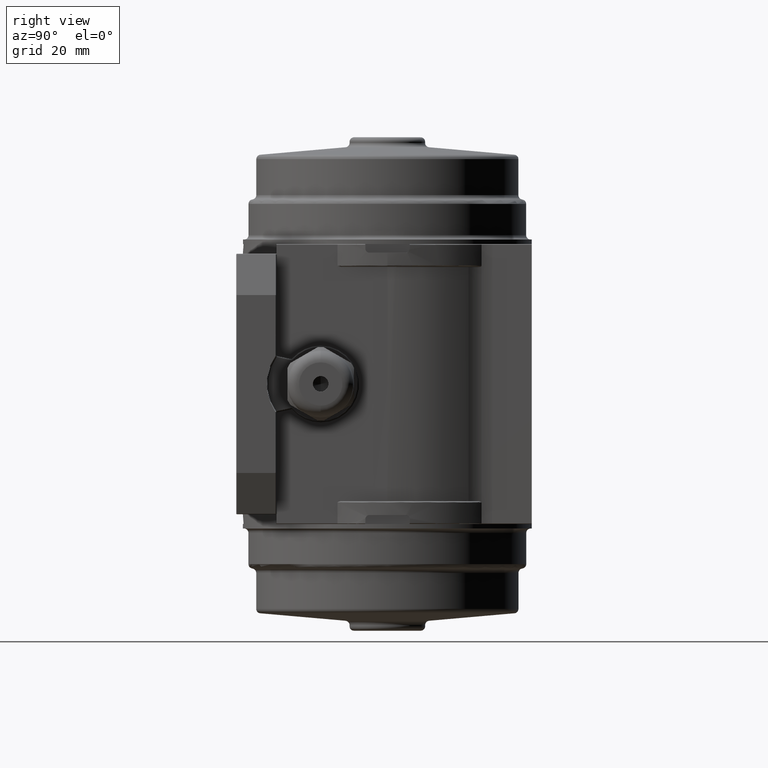
[diagram: clean part render]
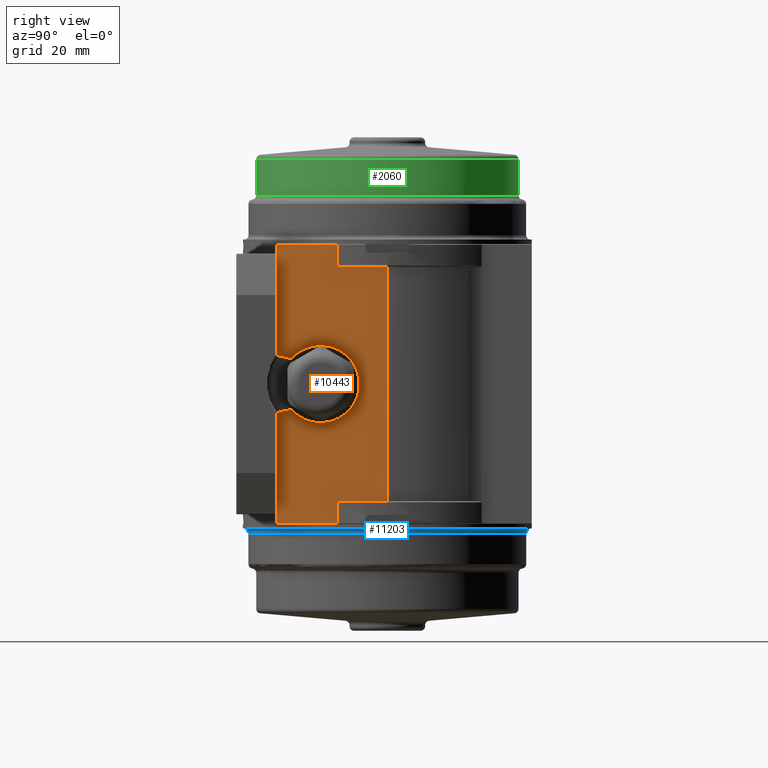
[diagram: same view with three faces highlighted in distinct colors, each labeled with its STEP entity id]
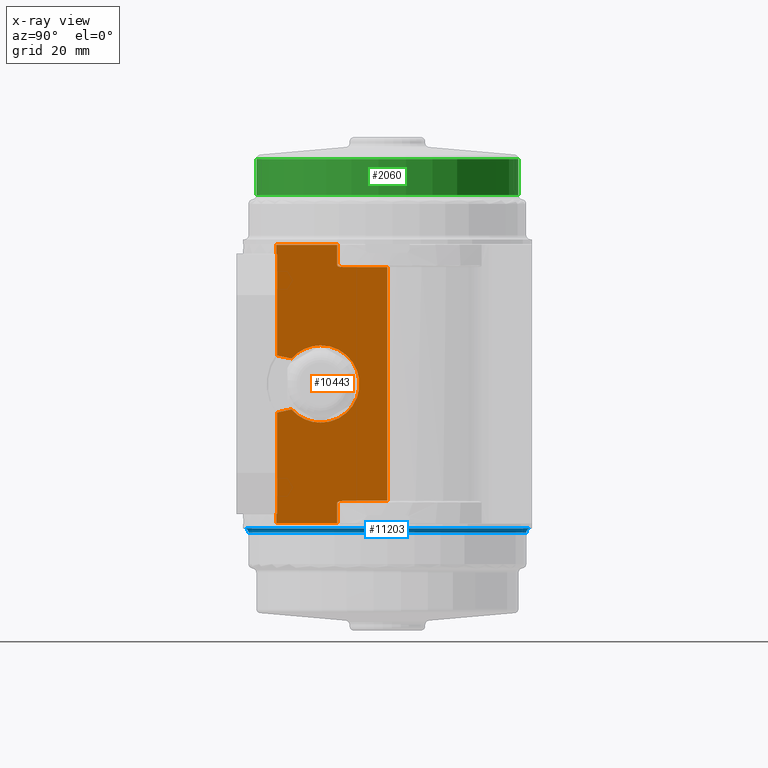
[diagram: x-ray of the same camera — body ghosted, the three highlighted faces saturated]
A machine part, right view with three faces highlighted in distinct colors.
The next image is the same camera in x-ray (body ghosted, the three faces saturated) — at least one of them is partly hidden behind the body in this view.
Their STEP definitions:

[orange] entity #10443 — the highlighted planar face has unit normal (-1, 0, 0).
#243 = VECTOR ( 'NONE', #19383, 1000.000000000000000 ) ;
#585 = CARTESIAN_POINT ( 'NONE',  ( 30.50000000000000000, -24.94507081286863600, -29.22252049754158100 ) ) ;
#763 = DIRECTION ( 'NONE',  ( 0.0000000000000000000, 0.0000000000000000000, 1.000000000000000000 ) ) ;
#788 = B_SPLINE_CURVE_WITH_KNOTS ( 'NONE', 3,
 ( #15837, #17677, #23658, #17763, #4224, #10102, #19690, #23573, #19774, #12062 ),
 .UNSPECIFIED., .F., .F.,
 ( 4, 2, 2, 2, 4 ),
 ( 0.0000000000000000000, 0.0006747935847082091800, 0.001012190377062312600, 0.001180888773239364400, 0.001349587169416416200 ),
 .UNSPECIFIED. ) ;
#983 = CARTESIAN_POINT ( 'NONE',  ( 30.50000000000000400, -11.28305060820740000, -26.64186963332067000 ) ) ;
#1045 = VECTOR ( 'NONE', #763, 1000.000000000000000 ) ;
#1313 = LINE ( 'NONE', #18358, #9717 ) ;
#1422 = B_SPLINE_CURVE_WITH_KNOTS ( 'NONE', 3,
 ( #11843, #12101, #585, #17550 ),
 .UNSPECIFIED., .F., .F.,
 ( 4, 4 ),
 ( -2.828427124967537400E-006, 0.0002562823623301678100 ),
 .UNSPECIFIED. ) ;
#1662 = VERTEX_POINT ( 'NONE', #3869 ) ;
#1890 = LINE ( 'NONE', #20753, #14572 ) ;
#2042 = CARTESIAN_POINT ( 'NONE',  ( 30.50000000000000000, -25.02250000000000100, 29.26209309047489900 ) ) ;
#2048 = EDGE_LOOP ( 'NONE', ( #21308, #8940, #21546, #16121, #4468, #13522, #22777, #20831, #14940, #4303, #5831, #9952, #16654, #11712, #23255, #11056, #12875, #11765, #20934, #20269 ) ) ;
#2191 = EDGE_CURVE ( 'NONE', #18465, #2964, #1422, .T. ) ;
#2498 = B_SPLINE_CURVE_WITH_KNOTS ( 'NONE', 3,
 ( #2042, #21374, #17521, #23060 ),
 .UNSPECIFIED., .F., .F.,
 ( 4, 4 ),
 ( 0.0000000000000000000, 0.0002574546013551287300 ),
 .UNSPECIFIED. ) ;
#2534 = LINE ( 'NONE', #16114, #24523 ) ;
#2657 = CARTESIAN_POINT ( 'NONE',  ( 30.50000000000000000, -0.02249999999999420200, -26.30000000000000100 ) ) ;
#2714 = CARTESIAN_POINT ( 'NONE',  ( 30.50000000000000000, -15.02249999999999700, -8.700000000000001100 ) ) ;
#2808 = CARTESIAN_POINT ( 'NONE',  ( 30.50000000000000000, -11.28305060820737900, -31.30000000000000100 ) ) ;
#2964 = VERTEX_POINT ( 'NONE', #16971 ) ;
#3160 = CARTESIAN_POINT ( 'NONE',  ( 30.50000000000000000, -0.02249999999999420200, 31.50000000000000000 ) ) ;
#3228 = VECTOR ( 'NONE', #15435, 1000.000000000000000 ) ;
#3237 = CARTESIAN_POINT ( 'NONE',  ( 30.50000000000001100, -10.84456934779381500, -26.38593220870534100 ) ) ;
#3509 = CARTESIAN_POINT ( 'NONE',  ( 30.50000000000000000, -0.02249999999999420200, 26.30000000000000100 ) ) ;
#3533 = CARTESIAN_POINT ( 'NONE',  ( 30.50000000000000000, -0.02249999999999420200, 31.50000000000000000 ) ) ;
#3629 = EDGE_CURVE ( 'NONE', #11407, #14795, #9667, .T. ) ;
#3869 = CARTESIAN_POINT ( 'NONE',  ( 30.50000000000000000, -25.02250000000000100, 29.26209309047489900 ) ) ;
#4203 = EDGE_CURVE ( 'NONE', #7334, #13596, #7821, .T. ) ;
#4224 = CARTESIAN_POINT ( 'NONE',  ( 30.50000000000000400, -10.95543645523618200, 26.41666716230166000 ) ) ;
#4278 = EDGE_CURVE ( 'NONE', #1662, #7020, #2498, .T. ) ;
#4303 = ORIENTED_EDGE ( 'NONE', *, *, #10416, .T. ) ;
#4334 = LINE ( 'NONE', #23545, #1045 ) ;
#4430 = VERTEX_POINT ( 'NONE', #6468 ) ;
#4468 = ORIENTED_EDGE ( 'NONE', *, *, #6333, .T. ) ;
#4610 = CARTESIAN_POINT ( 'NONE',  ( 30.50000000000000000, -0.02249999999999420200, -26.30000000000000100 ) ) ;
#4770 = CARTESIAN_POINT ( 'NONE',  ( 30.50000000000000000, -24.78081352438560000, -6.402984750821000000 ) ) ;
#4848 = DIRECTION ( 'NONE',  ( -0.0000000000000000000, -0.9780367803775159600, -0.2084323780720804800 ) ) ;
#5092 = DIRECTION ( 'NONE',  ( -1.000000000000000000, 0.0000000000000000000, 0.0000000000000000000 ) ) ;
#5486 = CARTESIAN_POINT ( 'NONE',  ( 30.50000000000000000, -24.82250000000000200, 6.250000000000000000 ) ) ;
#5492 = EDGE_CURVE ( 'NONE', #22423, #1662, #8971, .T. ) ;
#5584 = DIRECTION ( 'NONE',  ( -1.000000000000000000, 0.0000000000000000000, 0.0000000000000000000 ) ) ;
#5831 = ORIENTED_EDGE ( 'NONE', *, *, #23860, .T. ) ;
#5923 = FACE_OUTER_BOUND ( 'NONE', #2048, .T. ) ;
#5974 = DIRECTION ( 'NONE',  ( 0.0000000000000000000, 0.0000000000000000000, 1.000000000000000000 ) ) ;
#6139 = EDGE_CURVE ( 'NONE', #7353, #9137, #17359, .T. ) ;
#6333 = EDGE_CURVE ( 'NONE', #9137, #18465, #11067, .T. ) ;
#6468 = CARTESIAN_POINT ( 'NONE',  ( 30.50000000000000000, -10.06242031840890000, -26.30000000000000100 ) ) ;
#6613 = EDGE_CURVE ( 'NONE', #7020, #22846, #19434, .T. ) ;
#6811 = EDGE_CURVE ( 'NONE', #8420, #7353, #10399, .T. ) ;
#6830 = DIRECTION ( 'NONE',  ( -0.0000000000000000000, 0.9780367803775160700, -0.2084323780720800100 ) ) ;
#6925 = CARTESIAN_POINT ( 'NONE',  ( 30.50000000000000700, -10.95523865625194500, -26.41667236933254900 ) ) ;
#7020 = VERTEX_POINT ( 'NONE', #8949 ) ;
#7086 = CARTESIAN_POINT ( 'NONE',  ( 30.50000000000000400, -11.15958812720085700, -26.51643916630170800 ) ) ;
#7116 = CARTESIAN_POINT ( 'NONE',  ( 30.50000000000000000, -21.57749674762195400, 5.720316218415369700 ) ) ;
#7334 = VERTEX_POINT ( 'NONE', #7116 ) ;
#7353 = VERTEX_POINT ( 'NONE', #16722 ) ;
#7740 = DIRECTION ( 'NONE',  ( -0.0000000000000000000, -1.000000000000000000, -0.0000000000000000000 ) ) ;
#7821 = CIRCLE ( 'NONE', #23975, 8.699999999999999300 ) ;
#7931 = CARTESIAN_POINT ( 'NONE',  ( 30.50000000000000000, -0.02249999999999420200, 31.30000000000000100 ) ) ;
#8420 = VERTEX_POINT ( 'NONE', #2714 ) ;
#8470 = VECTOR ( 'NONE', #22540, 1000.000000000000000 ) ;
#8685 = CARTESIAN_POINT ( 'NONE',  ( 30.50000000000000000, -25.02250000000000100, 31.30000000000000100 ) ) ;
#8722 = EDGE_CURVE ( 'NONE', #2964, #11531, #1890, .T. ) ;
#8940 = ORIENTED_EDGE ( 'NONE', *, *, #16946, .T. ) ;
#8949 = CARTESIAN_POINT ( 'NONE',  ( 30.50000000000000000, -24.82250000000000200, 29.10000000000000100 ) ) ;
#8971 = LINE ( 'NONE', #17503, #17700 ) ;
#9137 = VERTEX_POINT ( 'NONE', #24168 ) ;
#9265 = DIRECTION ( 'NONE',  ( 0.0000000000000000000, 0.0000000000000000000, -1.000000000000000000 ) ) ;
#9371 = DIRECTION ( 'NONE',  ( -1.000000000000000000, 0.0000000000000000000, 0.0000000000000000000 ) ) ;
#9380 = EDGE_CURVE ( 'NONE', #20220, #12328, #4334, .T. ) ;
#9448 = CARTESIAN_POINT ( 'NONE',  ( 30.50000000000000000, -15.02249999999999900, -1.839664895029665000E-015 ) ) ;
#9517 = VECTOR ( 'NONE', #9265, 1000.000000000000000 ) ;
#9632 = VERTEX_POINT ( 'NONE', #17406 ) ;
#9667 = LINE ( 'NONE', #3533, #8470 ) ;
#9717 = VECTOR ( 'NONE', #6830, 1000.000000000000000 ) ;
#9842 = DIRECTION ( 'NONE',  ( -1.000000000000000000, 0.0000000000000000000, 0.0000000000000000000 ) ) ;
#9952 = ORIENTED_EDGE ( 'NONE', *, *, #3629, .F. ) ;
#10102 = CARTESIAN_POINT ( 'NONE',  ( 30.50000000000000400, -11.10996171630485400, 26.48844359750623000 ) ) ;
#10189 = EDGE_CURVE ( 'NONE', #12328, #22423, #16776, .T. ) ;
#10399 = CIRCLE ( 'NONE', #18652, 8.699999999999999300 ) ;
#10416 = EDGE_CURVE ( 'NONE', #9632, #4430, #23404, .T. ) ;
#10443 = ADVANCED_FACE ( 'NONE', ( #5923 ), #20463, .F. ) ;
#10814 = DIRECTION ( 'NONE',  ( 0.0000000000000000000, 0.0000000000000000000, 1.000000000000000000 ) ) ;
#10864 = EDGE_CURVE ( 'NONE', #11407, #17100, #19738, .T. ) ;
#10946 = EDGE_CURVE ( 'NONE', #17100, #20220, #788, .T. ) ;
#11056 = ORIENTED_EDGE ( 'NONE', *, *, #10189, .T. ) ;
#11067 = LINE ( 'NONE', #21831, #3228 ) ;
#11407 = VERTEX_POINT ( 'NONE', #3509 ) ;
#11531 = VERTEX_POINT ( 'NONE', #21746 ) ;
#11712 = ORIENTED_EDGE ( 'NONE', *, *, #10946, .T. ) ;
#11765 = ORIENTED_EDGE ( 'NONE', *, *, #4278, .T. ) ;
#11785 = DIRECTION ( 'NONE',  ( 0.0000000000000000000, 0.0000000000000000000, -1.000000000000000000 ) ) ;
#11843 = CARTESIAN_POINT ( 'NONE',  ( 30.50000000000000000, -24.82250000000000200, -29.10000000000000100 ) ) ;
#12062 = CARTESIAN_POINT ( 'NONE',  ( 30.50000000000000000, -11.28305060820737900, 26.70000000000000300 ) ) ;
#12101 = CARTESIAN_POINT ( 'NONE',  ( 30.50000000000000000, -24.88357376217664900, -29.16107223534869400 ) ) ;
#12328 = VERTEX_POINT ( 'NONE', #23849 ) ;
#12518 = DIRECTION ( 'NONE',  ( 0.0000000000000000000, 1.000000000000000000, 0.0000000000000000000 ) ) ;
#12875 = ORIENTED_EDGE ( 'NONE', *, *, #5492, .T. ) ;
#13522 = ORIENTED_EDGE ( 'NONE', *, *, #2191, .T. ) ;
#13581 = CARTESIAN_POINT ( 'NONE',  ( 30.50000000000000000, -15.02249999999999900, -1.839664895029665000E-015 ) ) ;
#13596 = VERTEX_POINT ( 'NONE', #13598 ) ;
#13598 = CARTESIAN_POINT ( 'NONE',  ( 30.50000000000000000, -15.02249999999999900, 8.699999999999997500 ) ) ;
#13755 = CARTESIAN_POINT ( 'NONE',  ( 30.50000000000000000, -11.24747216032180000, 26.30000000000000100 ) ) ;
#13864 = CARTESIAN_POINT ( 'NONE',  ( 30.50000000000000000, -10.06242031840890000, 26.30000000000000100 ) ) ;
#14121 = VECTOR ( 'NONE', #20054, 1000.000000000000000 ) ;
#14159 = LINE ( 'NONE', #23565, #23133 ) ;
#14572 = VECTOR ( 'NONE', #22702, 1000.000000000000000 ) ;
#14615 = CARTESIAN_POINT ( 'NONE',  ( 30.49999999999999600, -10.51332036370545900, -26.31634512412808000 ) ) ;
#14637 = CIRCLE ( 'NONE', #24756, 8.699999999999999300 ) ;
#14795 = VERTEX_POINT ( 'NONE', #4610 ) ;
#14940 = ORIENTED_EDGE ( 'NONE', *, *, #19869, .T. ) ;
#15435 = DIRECTION ( 'NONE',  ( 0.0000000000000000000, 0.0000000000000000000, -1.000000000000000000 ) ) ;
#15837 = CARTESIAN_POINT ( 'NONE',  ( 30.50000000000000000, -10.06242031840890000, 26.30000000000000100 ) ) ;
#16114 = CARTESIAN_POINT ( 'NONE',  ( 30.50000000000000000, -11.24747216032180000, -31.30000000000000100 ) ) ;
#16121 = ORIENTED_EDGE ( 'NONE', *, *, #6139, .T. ) ;
#16346 = CARTESIAN_POINT ( 'NONE',  ( 30.50000000000000400, -10.28885770035992100, -26.29999999999999700 ) ) ;
#16522 = CARTESIAN_POINT ( 'NONE',  ( 30.50000000000001400, -11.10907540098852100, -26.48798383034111800 ) ) ;
#16648 = AXIS2_PLACEMENT_3D ( 'NONE', #3160, #5092, #22489 ) ;
#16654 = ORIENTED_EDGE ( 'NONE', *, *, #10864, .T. ) ;
#16722 = CARTESIAN_POINT ( 'NONE',  ( 30.50000000000000000, -21.57749674762195400, -5.720316218415380400 ) ) ;
#16776 = LINE ( 'NONE', #7931, #243 ) ;
#16946 = EDGE_CURVE ( 'NONE', #13596, #8420, #14637, .T. ) ;
#16971 = CARTESIAN_POINT ( 'NONE',  ( 30.50000000000000000, -25.02250000000000100, -29.26209309047489900 ) ) ;
#17100 = VERTEX_POINT ( 'NONE', #13864 ) ;
#17180 = EDGE_CURVE ( 'NONE', #11531, #17805, #2534, .T. ) ;
#17201 = CARTESIAN_POINT ( 'NONE',  ( 30.50000000000000000, -15.02249999999999900, -1.839664895029665000E-015 ) ) ;
#17359 = LINE ( 'NONE', #4770, #21257 ) ;
#17406 = CARTESIAN_POINT ( 'NONE',  ( 30.50000000000000000, -11.28305060820737900, -26.70000000000000300 ) ) ;
#17439 = CARTESIAN_POINT ( 'NONE',  ( 30.50000000000000000, -11.28305060820737900, 26.70000000000000300 ) ) ;
#17503 = CARTESIAN_POINT ( 'NONE',  ( 30.50000000000000000, -25.02250000000000100, 31.50000000000000000 ) ) ;
#17521 = CARTESIAN_POINT ( 'NONE',  ( 30.50000000000000000, -24.88318339001826700, 29.16068187294951000 ) ) ;
#17550 = CARTESIAN_POINT ( 'NONE',  ( 30.50000000000000000, -25.02250000000000100, -29.26209309047489900 ) ) ;
#17677 = CARTESIAN_POINT ( 'NONE',  ( 30.49999999999999600, -10.28889712364266800, 26.30000000000000400 ) ) ;
#17700 = VECTOR ( 'NONE', #11785, 1000.000000000000000 ) ;
#17719 = EDGE_CURVE ( 'NONE', #22846, #7334, #1313, .T. ) ;
#17763 = CARTESIAN_POINT ( 'NONE',  ( 30.50000000000000400, -10.84498573758661000, 26.38603646714158700 ) ) ;
#17805 = VERTEX_POINT ( 'NONE', #2808 ) ;
#18358 = CARTESIAN_POINT ( 'NONE',  ( 30.50000000000000000, -21.68295855658079700, 5.742791503678770200 ) ) ;
#18465 = VERTEX_POINT ( 'NONE', #22288 ) ;
#18571 = LINE ( 'NONE', #2657, #14121 ) ;
#18652 = AXIS2_PLACEMENT_3D ( 'NONE', #17201, #9371, #19102 ) ;
#19102 = DIRECTION ( 'NONE',  ( 0.0000000000000000000, 0.0000000000000000000, 1.000000000000000000 ) ) ;
#19383 = DIRECTION ( 'NONE',  ( -0.0000000000000000000, -1.000000000000000000, -0.0000000000000000000 ) ) ;
#19434 = LINE ( 'NONE', #5486, #9517 ) ;
#19690 = CARTESIAN_POINT ( 'NONE',  ( 30.50000000000000700, -11.16044404642362200, 26.51701523274830700 ) ) ;
#19700 = CARTESIAN_POINT ( 'NONE',  ( 30.50000000000000000, -24.82250000000000200, 6.411868681793820600 ) ) ;
#19738 = LINE ( 'NONE', #13755, #20029 ) ;
#19774 = CARTESIAN_POINT ( 'NONE',  ( 30.49999999999999300, -11.28305060820737700, 26.64224090981092600 ) ) ;
#19869 = EDGE_CURVE ( 'NONE', #17805, #9632, #14159, .T. ) ;
#20029 = VECTOR ( 'NONE', #7740, 1000.000000000000000 ) ;
#20054 = DIRECTION ( 'NONE',  ( -0.0000000000000000000, 1.000000000000000000, -0.0000000000000000000 ) ) ;
#20220 = VERTEX_POINT ( 'NONE', #17439 ) ;
#20269 = ORIENTED_EDGE ( 'NONE', *, *, #17719, .T. ) ;
#20463 = PLANE ( 'NONE',  #16648 ) ;
#20753 = CARTESIAN_POINT ( 'NONE',  ( 30.50000000000000000, -25.02250000000000100, 31.50000000000000000 ) ) ;
#20831 = ORIENTED_EDGE ( 'NONE', *, *, #17180, .T. ) ;
#20934 = ORIENTED_EDGE ( 'NONE', *, *, #6613, .T. ) ;
#21257 = VECTOR ( 'NONE', #4848, 1000.000000000000100 ) ;
#21308 = ORIENTED_EDGE ( 'NONE', *, *, #4203, .T. ) ;
#21374 = CARTESIAN_POINT ( 'NONE',  ( 30.50000000000000000, -24.94506531529809100, 29.22251768783726400 ) ) ;
#21546 = ORIENTED_EDGE ( 'NONE', *, *, #6811, .T. ) ;
#21746 = CARTESIAN_POINT ( 'NONE',  ( 30.50000000000000000, -25.02250000000000100, -31.30000000000000100 ) ) ;
#21831 = CARTESIAN_POINT ( 'NONE',  ( 30.50000000000000000, -24.82250000000000200, -29.30000000000000100 ) ) ;
#21965 = DIRECTION ( 'NONE',  ( 0.0000000000000000000, 0.0000000000000000000, 1.000000000000000000 ) ) ;
#22288 = CARTESIAN_POINT ( 'NONE',  ( 30.50000000000000000, -24.82250000000000200, -29.10000000000000100 ) ) ;
#22409 = CARTESIAN_POINT ( 'NONE',  ( 30.50000000000000400, -11.24548913742485800, -26.59135368662537500 ) ) ;
#22423 = VERTEX_POINT ( 'NONE', #8685 ) ;
#22489 = DIRECTION ( 'NONE',  ( 0.0000000000000000000, 0.0000000000000000000, 1.000000000000000000 ) ) ;
#22540 = DIRECTION ( 'NONE',  ( 0.0000000000000000000, 0.0000000000000000000, -1.000000000000000000 ) ) ;
#22702 = DIRECTION ( 'NONE',  ( 0.0000000000000000000, 0.0000000000000000000, -1.000000000000000000 ) ) ;
#22777 = ORIENTED_EDGE ( 'NONE', *, *, #8722, .T. ) ;
#22846 = VERTEX_POINT ( 'NONE', #19700 ) ;
#23060 = CARTESIAN_POINT ( 'NONE',  ( 30.50000000000000000, -24.82250000000000200, 29.10000000000000100 ) ) ;
#23133 = VECTOR ( 'NONE', #21965, 1000.000000000000000 ) ;
#23255 = ORIENTED_EDGE ( 'NONE', *, *, #9380, .T. ) ;
#23404 = B_SPLINE_CURVE_WITH_KNOTS ( 'NONE', 3,
 ( #24125, #983, #22409, #7086, #16522, #6925, #3237, #14615, #16346, #24194 ),
 .UNSPECIFIED., .F., .F.,
 ( 4, 2, 2, 2, 4 ),
 ( 0.0000000000000000000, 0.0001714062574165504000, 0.0003428125148331008000, 0.0006856250296662016100, 0.001371250059332398000 ),
 .UNSPECIFIED. ) ;
#23545 = CARTESIAN_POINT ( 'NONE',  ( 30.50000000000000000, -11.28305060820737900, 31.50000000000000000 ) ) ;
#23565 = CARTESIAN_POINT ( 'NONE',  ( 30.50000000000000000, -11.28305060820737900, -26.50000000000000000 ) ) ;
#23573 = CARTESIAN_POINT ( 'NONE',  ( 30.49999999999999300, -11.24594742609591200, 26.59192637856135400 ) ) ;
#23658 = CARTESIAN_POINT ( 'NONE',  ( 30.50000000000000000, -10.51345510463721800, 26.31633993236454900 ) ) ;
#23849 = CARTESIAN_POINT ( 'NONE',  ( 30.50000000000000000, -11.28305060820737900, 31.30000000000000100 ) ) ;
#23860 = EDGE_CURVE ( 'NONE', #4430, #14795, #18571, .T. ) ;
#23975 = AXIS2_PLACEMENT_3D ( 'NONE', #9448, #5584, #10814 ) ;
#24125 = CARTESIAN_POINT ( 'NONE',  ( 30.50000000000000000, -11.28305060820737900, -26.70000000000000300 ) ) ;
#24168 = CARTESIAN_POINT ( 'NONE',  ( 30.50000000000000000, -24.82250000000000200, -6.411868681793840200 ) ) ;
#24194 = CARTESIAN_POINT ( 'NONE',  ( 30.50000000000000000, -10.06242031840890000, -26.30000000000000100 ) ) ;
#24523 = VECTOR ( 'NONE', #12518, 1000.000000000000000 ) ;
#24756 = AXIS2_PLACEMENT_3D ( 'NONE', #13581, #9842, #5974 ) ;

[blue] entity #11203 — the highlighted toroidal blend (fillet) surface has major radius 32.25 mm and minor (blend) radius 1 mm.
#345 = EDGE_CURVE ( 'NONE', #6842, #22558, #21161, .T. ) ;
#508 = ORIENTED_EDGE ( 'NONE', *, *, #18892, .F. ) ;
#759 = AXIS2_PLACEMENT_3D ( 'NONE', #11860, #15897, #12033 ) ;
#1370 = AXIS2_PLACEMENT_3D ( 'NONE', #16631, #8733, #22274 ) ;
#2529 = CARTESIAN_POINT ( 'NONE',  ( -2.774295482471481000E-016, 32.22750000000000600, -32.50000000000000000 ) ) ;
#3091 = DIRECTION ( 'NONE',  ( -8.602466612314669600E-018, 1.000000000000000000, 0.0000000000000000000 ) ) ;
#3773 = EDGE_CURVE ( 'NONE', #16625, #6178, #15405, .T. ) ;
#4932 = CARTESIAN_POINT ( 'NONE',  ( -2.688270816348334200E-016, 31.22750000000000600, -33.50000000000000000 ) ) ;
#5022 = DIRECTION ( 'NONE',  ( -0.0000000000000000000, -0.0000000000000000000, -1.000000000000000000 ) ) ;
#5052 = ORIENTED_EDGE ( 'NONE', *, *, #10684, .F. ) ;
#5064 = CARTESIAN_POINT ( 'NONE',  ( -3.558194165700645300E-015, -31.27249999999999400, -33.50000000000000000 ) ) ;
#5114 = ORIENTED_EDGE ( 'NONE', *, *, #345, .T. ) ;
#6178 = VERTEX_POINT ( 'NONE', #4932 ) ;
#6842 = VERTEX_POINT ( 'NONE', #23073 ) ;
#8138 = CIRCLE ( 'NONE', #18635, 31.25000000000000000 ) ;
#8733 = DIRECTION ( 'NONE',  ( 0.0000000000000000000, 0.0000000000000000000, 1.000000000000000000 ) ) ;
#8892 = CARTESIAN_POINT ( 'NONE',  ( 0.0000000000000000000, -0.02249999999999475000, -33.50000000000000000 ) ) ;
#9213 = ORIENTED_EDGE ( 'NONE', *, *, #3773, .F. ) ;
#9726 = EDGE_LOOP ( 'NONE', ( #5052, #5114, #508, #9213 ) ) ;
#10039 = AXIS2_PLACEMENT_3D ( 'NONE', #10076, #19831, #21870 ) ;
#10076 = CARTESIAN_POINT ( 'NONE',  ( -3.672056379003065800E-015, -32.27249999999999400, -33.50000000000000000 ) ) ;
#10225 = CARTESIAN_POINT ( 'NONE',  ( 0.0000000000000000000, -0.02249999999999475000, -32.50000000000000000 ) ) ;
#10433 = CIRCLE ( 'NONE', #22614, 32.25000000000000000 ) ;
#10684 = EDGE_CURVE ( 'NONE', #6842, #16625, #10433, .T. ) ;
#11203 = ADVANCED_FACE ( 'NONE', ( #15240 ), #16427, .F. ) ;
#11860 = CARTESIAN_POINT ( 'NONE',  ( -2.774295482471481000E-016, 32.22750000000000600, -33.50000000000000000 ) ) ;
#12033 = DIRECTION ( 'NONE',  ( -8.602466612314671200E-018, 1.000000000000000000, 0.0000000000000000000 ) ) ;
#12951 = DIRECTION ( 'NONE',  ( -8.602466612314669600E-018, 1.000000000000000000, 0.0000000000000000000 ) ) ;
#15240 = FACE_OUTER_BOUND ( 'NONE', #9726, .T. ) ;
#15405 = CIRCLE ( 'NONE', #759, 1.000000000000000900 ) ;
#15897 = DIRECTION ( 'NONE',  ( 1.000000000000000000, 8.602466612314669600E-018, -0.0000000000000000000 ) ) ;
#16427 = TOROIDAL_SURFACE ( 'NONE', #1370, 32.25000000000000000, 1.000000000000000000 ) ;
#16625 = VERTEX_POINT ( 'NONE', #2529 ) ;
#16631 = CARTESIAN_POINT ( 'NONE',  ( 0.0000000000000000000, -0.02249999999999475000, -33.50000000000000000 ) ) ;
#18635 = AXIS2_PLACEMENT_3D ( 'NONE', #8892, #5022, #3091 ) ;
#18892 = EDGE_CURVE ( 'NONE', #6178, #22558, #8138, .T. ) ;
#19831 = DIRECTION ( 'NONE',  ( -1.000000000000000000, 1.138622133024206500E-016, 0.0000000000000000000 ) ) ;
#21161 = CIRCLE ( 'NONE', #10039, 1.000000000000000900 ) ;
#21870 = DIRECTION ( 'NONE',  ( -1.138622133024203300E-016, -1.000000000000000000, 0.0000000000000000000 ) ) ;
#22005 = DIRECTION ( 'NONE',  ( 0.0000000000000000000, 0.0000000000000000000, 1.000000000000000000 ) ) ;
#22274 = DIRECTION ( 'NONE',  ( -8.602466612314669600E-018, 1.000000000000000000, 0.0000000000000000000 ) ) ;
#22558 = VERTEX_POINT ( 'NONE', #5064 ) ;
#22614 = AXIS2_PLACEMENT_3D ( 'NONE', #10225, #22005, #12951 ) ;
#23073 = CARTESIAN_POINT ( 'NONE',  ( -3.672056379003065800E-015, -32.27249999999999400, -32.50000000000000000 ) ) ;

[green] entity #2060 — the highlighted cylindrical surface (partial cylindrical patch) has radius 29.5 mm, axis along (0, 0, -1).
#2060 = ADVANCED_FACE ( 'NONE', ( #17496 ), #22300, .T. ) ;
#2077 = DIRECTION ( 'NONE',  ( 0.0000000000000000000, 0.0000000000000000000, -1.000000000000000000 ) ) ;
#2491 = CARTESIAN_POINT ( 'NONE',  ( -1.111724874690545000, 29.45654455376730500, 31.50000000000000000 ) ) ;
#2682 = ORIENTED_EDGE ( 'NONE', *, *, #17529, .T. ) ;
#2700 = VERTEX_POINT ( 'NONE', #23989 ) ;
#3797 = CARTESIAN_POINT ( 'NONE',  ( 0.0000000000000000000, -0.02249999999999475000, 50.58366882598259900 ) ) ;
#4318 = CIRCLE ( 'NONE', #13822, 29.50000000000005300 ) ;
#4519 = LINE ( 'NONE', #2491, #7804 ) ;
#4529 = ORIENTED_EDGE ( 'NONE', *, *, #21696, .F. ) ;
#4948 = CARTESIAN_POINT ( 'NONE',  ( 1.111724874690546400, -29.50154455376723900, 50.58366882598259900 ) ) ;
#5870 = CIRCLE ( 'NONE', #19225, 29.50000000000005300 ) ;
#5881 = VERTEX_POINT ( 'NONE', #15297 ) ;
#6590 = DIRECTION ( 'NONE',  ( -0.0000000000000000000, -0.0000000000000000000, 1.000000000000000000 ) ) ;
#7500 = DIRECTION ( 'NONE',  ( 0.0000000000000000000, 0.0000000000000000000, -1.000000000000000000 ) ) ;
#7649 = DIRECTION ( 'NONE',  ( 0.03768558897256078100, -0.9992896458904151300, 0.0000000000000000000 ) ) ;
#7804 = VECTOR ( 'NONE', #8631, 1000.000000000000000 ) ;
#8091 = LINE ( 'NONE', #15106, #10212 ) ;
#8554 = CARTESIAN_POINT ( 'NONE',  ( 0.0000000000000000000, -0.02249999999999475000, 42.50000000000000000 ) ) ;
#8631 = DIRECTION ( 'NONE',  ( 0.0000000000000000000, 0.0000000000000000000, -1.000000000000000000 ) ) ;
#10212 = VECTOR ( 'NONE', #7500, 1000.000000000000000 ) ;
#11035 = EDGE_LOOP ( 'NONE', ( #15561, #17943, #2682, #4529 ) ) ;
#11252 = VERTEX_POINT ( 'NONE', #4948 ) ;
#12578 = VERTEX_POINT ( 'NONE', #24532 ) ;
#13458 = CARTESIAN_POINT ( 'NONE',  ( 0.0000000000000000000, -0.02249999999999475000, 31.50000000000000000 ) ) ;
#13822 = AXIS2_PLACEMENT_3D ( 'NONE', #8554, #6590, #22010 ) ;
#15106 = CARTESIAN_POINT ( 'NONE',  ( 1.111724874690548600, -29.50154455376729200, 31.50000000000000000 ) ) ;
#15297 = CARTESIAN_POINT ( 'NONE',  ( -1.111724874690545000, 29.45654455376730500, 42.50000000000000000 ) ) ;
#15561 = ORIENTED_EDGE ( 'NONE', *, *, #17020, .T. ) ;
#17020 = EDGE_CURVE ( 'NONE', #2700, #11252, #5870, .T. ) ;
#17496 = FACE_OUTER_BOUND ( 'NONE', #11035, .T. ) ;
#17529 = EDGE_CURVE ( 'NONE', #12578, #5881, #4318, .T. ) ;
#17943 = ORIENTED_EDGE ( 'NONE', *, *, #22033, .T. ) ;
#18620 = AXIS2_PLACEMENT_3D ( 'NONE', #13458, #2077, #22923 ) ;
#19225 = AXIS2_PLACEMENT_3D ( 'NONE', #3797, #19257, #7649 ) ;
#19257 = DIRECTION ( 'NONE',  ( -0.0000000000000000000, -0.0000000000000000000, -1.000000000000000000 ) ) ;
#21696 = EDGE_CURVE ( 'NONE', #2700, #5881, #4519, .T. ) ;
#22010 = DIRECTION ( 'NONE',  ( -0.03768558897256078100, 0.9992896458904151300, 0.0000000000000000000 ) ) ;
#22033 = EDGE_CURVE ( 'NONE', #11252, #12578, #8091, .T. ) ;
#22300 = CYLINDRICAL_SURFACE ( 'NONE', #18620, 29.50000000000005300 ) ;
#22923 = DIRECTION ( 'NONE',  ( -0.03768558897256078100, 0.9992896458904151300, 0.0000000000000000000 ) ) ;
#23989 = CARTESIAN_POINT ( 'NONE',  ( -1.111724874690542800, 29.45654455376724800, 50.58366882598259900 ) ) ;
#24532 = CARTESIAN_POINT ( 'NONE',  ( 1.111724874690546400, -29.50154455376723900, 42.50000000000000000 ) ) ;